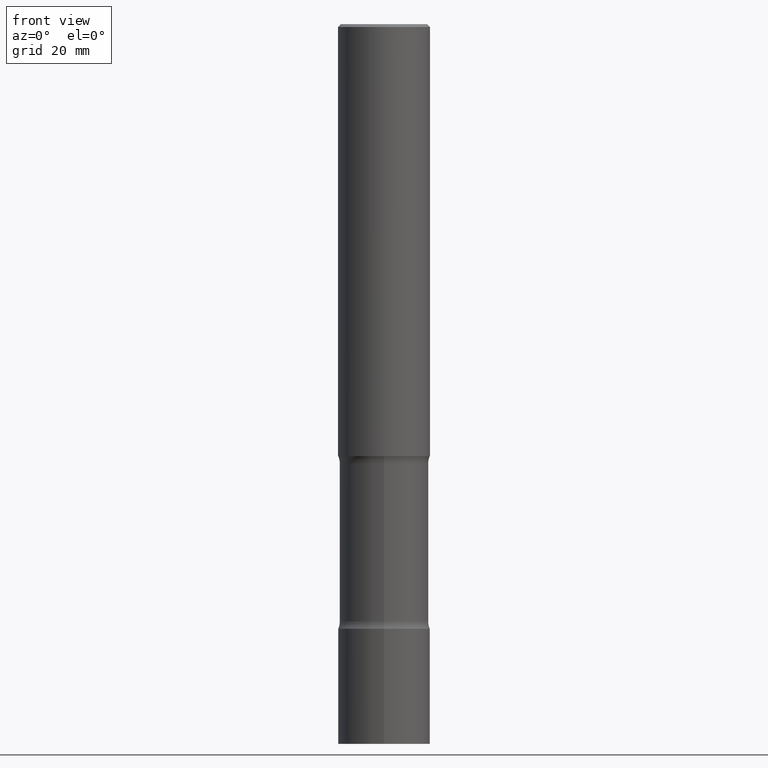
[diagram: clean part render]
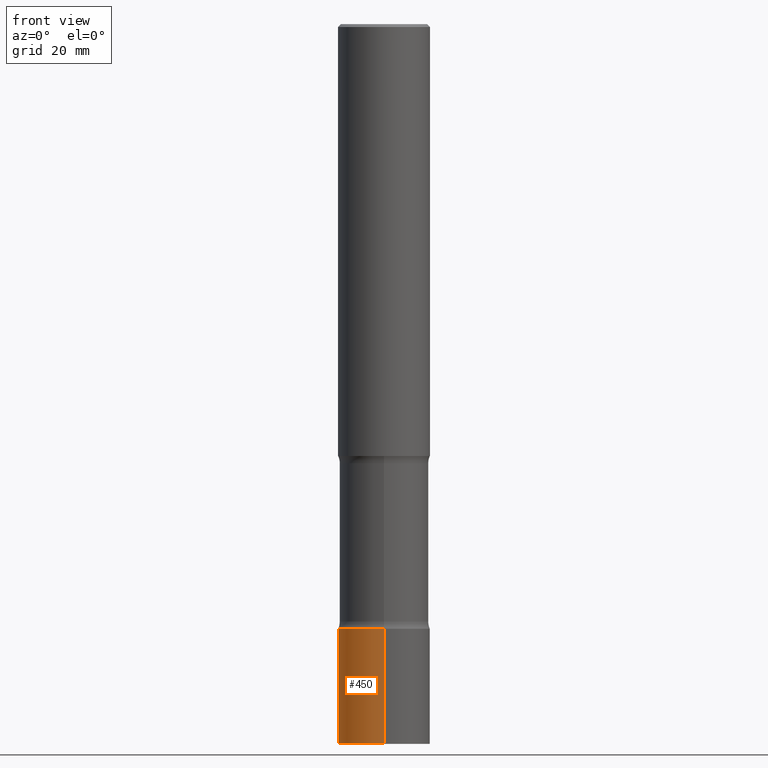
[diagram: same view with one face highlighted and labeled with its STEP entity id]
A machine part, front view. The second image highlights one B-rep face of the part: STEP entity #450.
In plain terms, the highlighted cylindrical surface (partial cylindrical patch) has radius 7.9997 mm, axis along (-0, 0, 1).
Its self-contained STEP definition (entity closure, byte-faithful):
#2 = CARTESIAN_POINT ( 'NONE',  ( 1.203946298913715486E-28, -1.717607208245619996E-14, -4.921299999999999564 ) ) ;
#20 = EDGE_LOOP ( 'NONE', ( #94, #467, #101, #92 ) ) ;
#25 = DIRECTION ( 'NONE',  ( -2.446398916777509220E-29, 3.490149367536260622E-15, 1.000000000000000000 ) ) ;
#40 = CARTESIAN_POINT ( 'NONE',  ( -2.199284095337289871E-15, -0.3149500000000000632, 1.099222543305545587E-15 ) ) ;
#49 = DIRECTION ( 'NONE',  ( -6.982962677686265922E-15, -1.000000000000000000, 3.469564049740292375E-15 ) ) ;
#55 = CARTESIAN_POINT ( 'NONE',  ( 1.011316848206654349E-28, -1.442792847045814558E-14, -4.133899999999999686 ) ) ;
#62 = VECTOR ( 'NONE', #120, 39.37007874015748143 ) ;
#86 = CIRCLE ( 'NONE', #335, 0.3149500000000000632 ) ;
#89 = VERTEX_POINT ( 'NONE', #274 ) ;
#92 = ORIENTED_EDGE ( 'NONE', *, *, #315, .F. ) ;
#93 = DIRECTION ( 'NONE',  ( -2.446398916777509500E-29, 3.490149367536260622E-15, 1.000000000000000000 ) ) ;
#94 = ORIENTED_EDGE ( 'NONE', *, *, #351, .F. ) ;
#101 = ORIENTED_EDGE ( 'NONE', *, *, #143, .T. ) ;
#113 = DIRECTION ( 'NONE',  ( -2.446398916777509220E-29, 3.490149367536260622E-15, 1.000000000000000000 ) ) ;
#120 = DIRECTION ( 'NONE',  ( -2.446398916777509500E-29, 3.490149367536260622E-15, 1.000000000000000000 ) ) ;
#129 = CARTESIAN_POINT ( 'NONE',  ( 2.237854346276435590E-15, 0.3149500000000000632, -1.099222543305545587E-15 ) ) ;
#139 = AXIS2_PLACEMENT_3D ( 'NONE', #55, #329, #49 ) ;
#141 = CYLINDRICAL_SURFACE ( 'NONE', #187, 0.3149500000000000632 ) ;
#143 = EDGE_CURVE ( 'NONE', #248, #89, #314, .T. ) ;
#172 = EDGE_CURVE ( 'NONE', #294, #248, #86, .T. ) ;
#187 = AXIS2_PLACEMENT_3D ( 'NONE', #458, #25, #215 ) ;
#211 = LINE ( 'NONE', #129, #400 ) ;
#213 = CARTESIAN_POINT ( 'NONE',  ( 2.237854346276546425E-15, 0.3149499999999829103, -4.921300000000000452 ) ) ;
#215 = DIRECTION ( 'NONE',  ( -6.982962677686265922E-15, -1.000000000000000000, 3.490149367536261016E-15 ) ) ;
#239 = CARTESIAN_POINT ( 'NONE',  ( 2.237854346276555892E-15, 0.3149499999999856859, -4.133900000000000574 ) ) ;
#248 = VERTEX_POINT ( 'NONE', #445 ) ;
#266 = DIRECTION ( 'NONE',  ( -6.982962677686265922E-15, -1.000000000000000000, 3.469564049740292375E-15 ) ) ;
#274 = CARTESIAN_POINT ( 'NONE',  ( -2.199284095337188897E-15, -0.3149500000000144961, -4.133899999999997910 ) ) ;
#294 = VERTEX_POINT ( 'NONE', #213 ) ;
#314 = LINE ( 'NONE', #40, #62 ) ;
#315 = EDGE_CURVE ( 'NONE', #326, #89, #488, .T. ) ;
#326 = VERTEX_POINT ( 'NONE', #239 ) ;
#329 = DIRECTION ( 'NONE',  ( -2.446398916777509220E-29, 3.490149367536260622E-15, 1.000000000000000000 ) ) ;
#335 = AXIS2_PLACEMENT_3D ( 'NONE', #2, #113, #266 ) ;
#351 = EDGE_CURVE ( 'NONE', #294, #326, #211, .T. ) ;
#400 = VECTOR ( 'NONE', #93, 39.37007874015748143 ) ;
#445 = CARTESIAN_POINT ( 'NONE',  ( -2.199284095337169570E-15, -0.3149500000000172162, -4.921299999999998676 ) ) ;
#450 = ADVANCED_FACE ( 'NONE', ( #497 ), #141, .T. ) ;
#458 = CARTESIAN_POINT ( 'NONE',  ( 0.000000000000000000, 0.000000000000000000, 0.000000000000000000 ) ) ;
#467 = ORIENTED_EDGE ( 'NONE', *, *, #172, .T. ) ;
#488 = CIRCLE ( 'NONE', #139, 0.3149500000000000632 ) ;
#497 = FACE_OUTER_BOUND ( 'NONE', #20, .T. ) ;